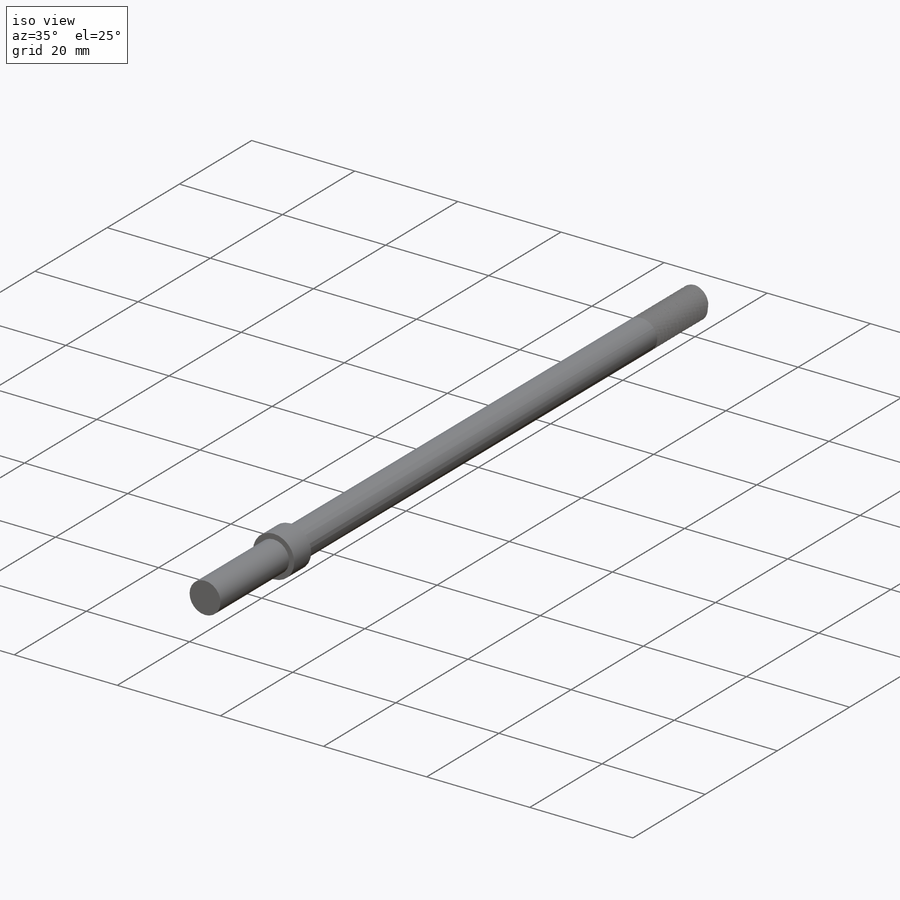
[diagram: iso view]
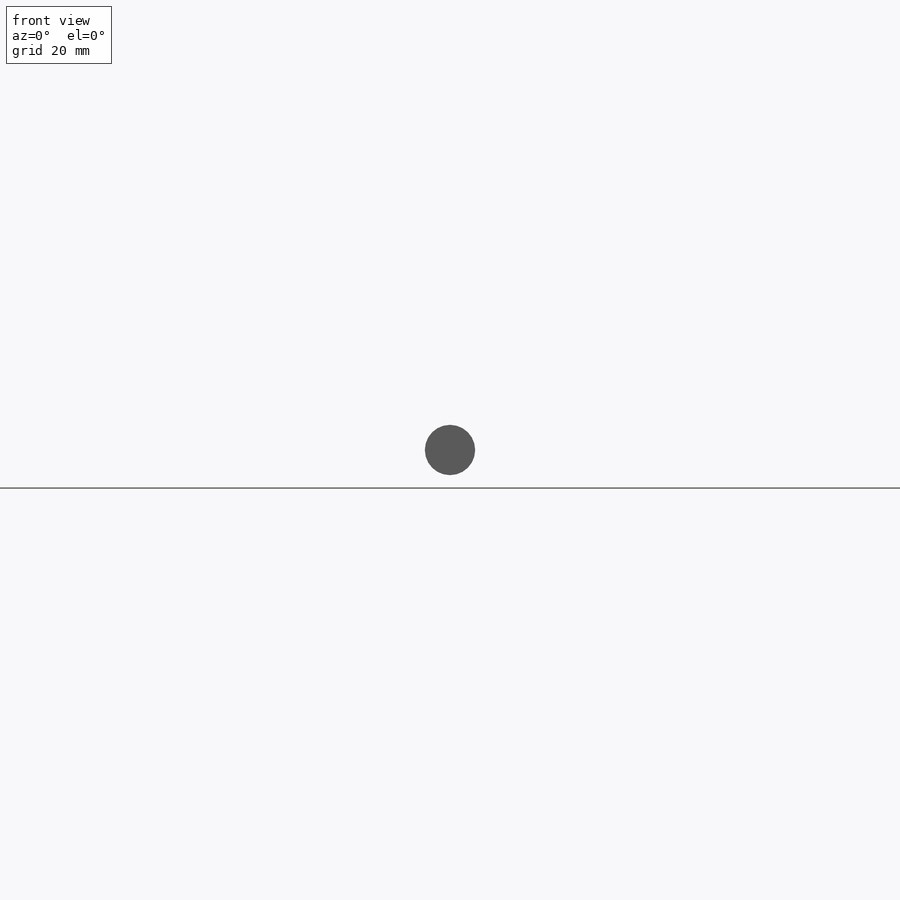
[diagram: front view]
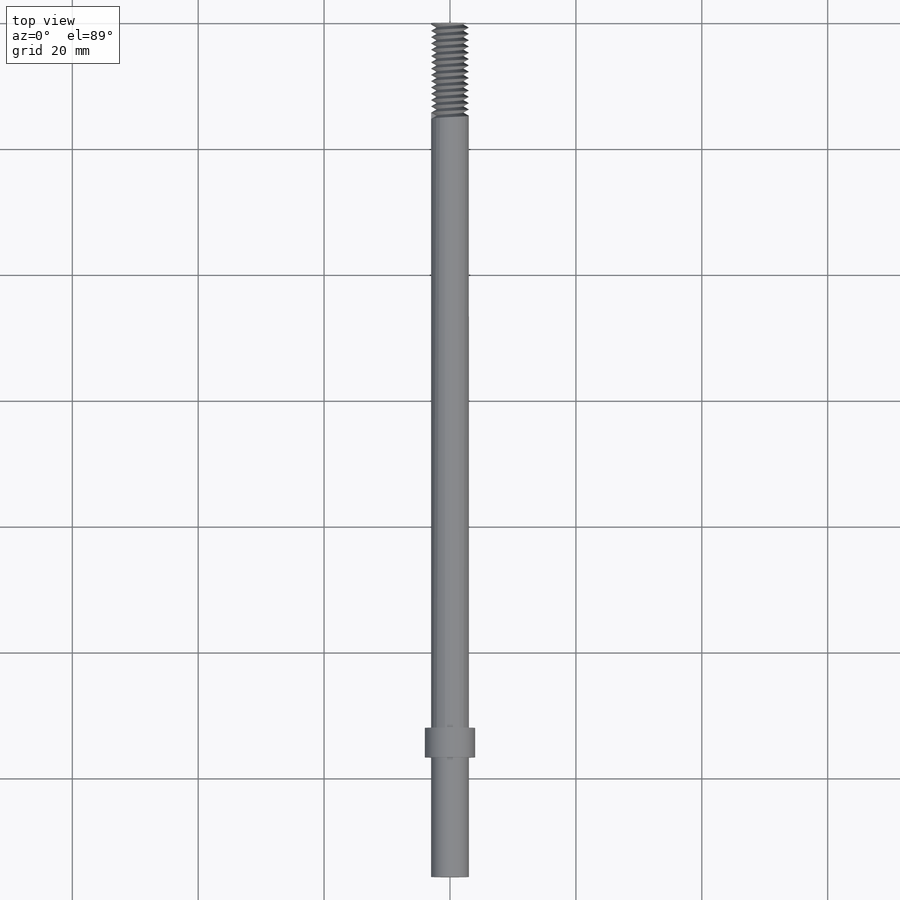
[diagram: top view]
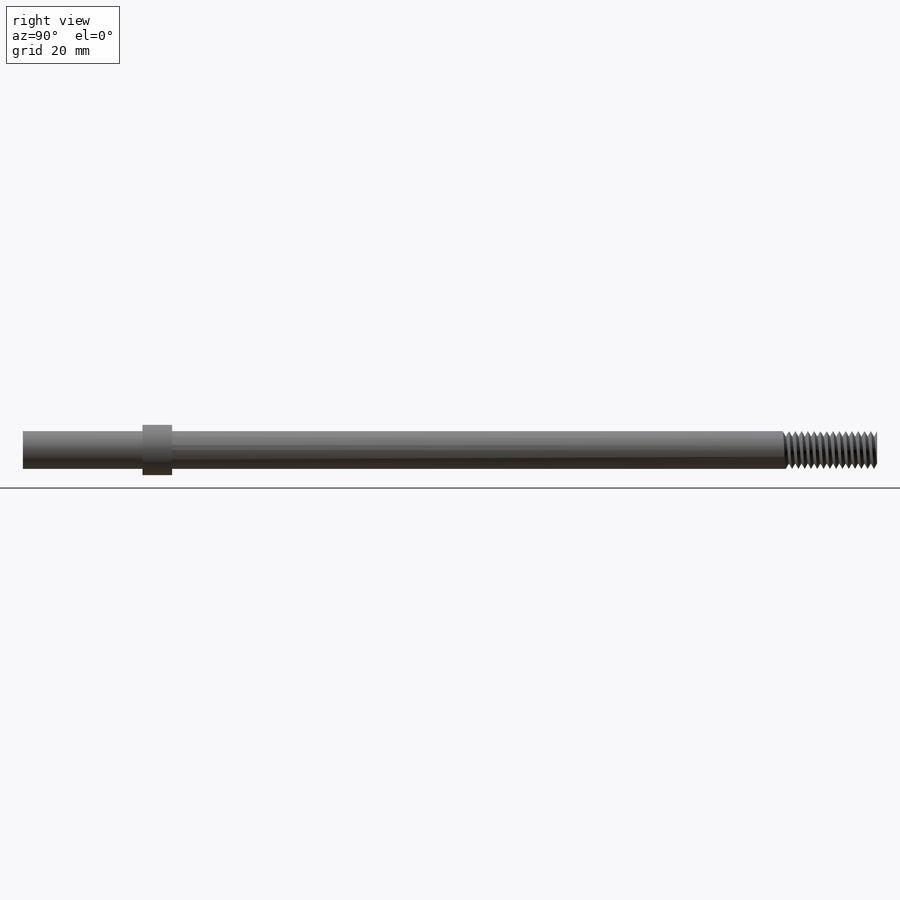
[diagram: right view]
SOLIDWORKS PART (.sldprt)
format: sldprt  version: not decoded by parser v0  size: 423,424 bytes
history: native  units: mm
features: sketch x5, extrude x3, material x1, helix x1, sweep x1 (+12 scaffold rows collapsed)
feature tree (23):
  scaffold x12  (default folders/planes/origin — collapsed)
  material  "Material <not specified>"
  sketch  "Sketch1"  dims[D1=6.0mm]
  extrude  "Boss-Extrude1"  Depth=112mm
  sketch  "Sketch2"  dims[D1=8.0mm]
  extrude  "Boss-Extrude2"  Depth=4.7mm
  sketch  "Sketch3"  dims[D1=6.0mm]
  extrude  "Boss-Extrude3"  Depth=19mm
  sketch  "Sketch5"  dims[c1.D1=0.866mm c1.D2=0.866mm c2.D2=30.0deg]
  sketch  "Sketch7"  dims[D1=6.0mm]
  helix  "Helix/Spiral1"  Pitch=15mm
  sweep  "Cut-Sweep4"
decode coverage: 9 of 10 modeling features carry decoded parameters
note: suppression state not decoded; provenance and decode notes live in map.json
